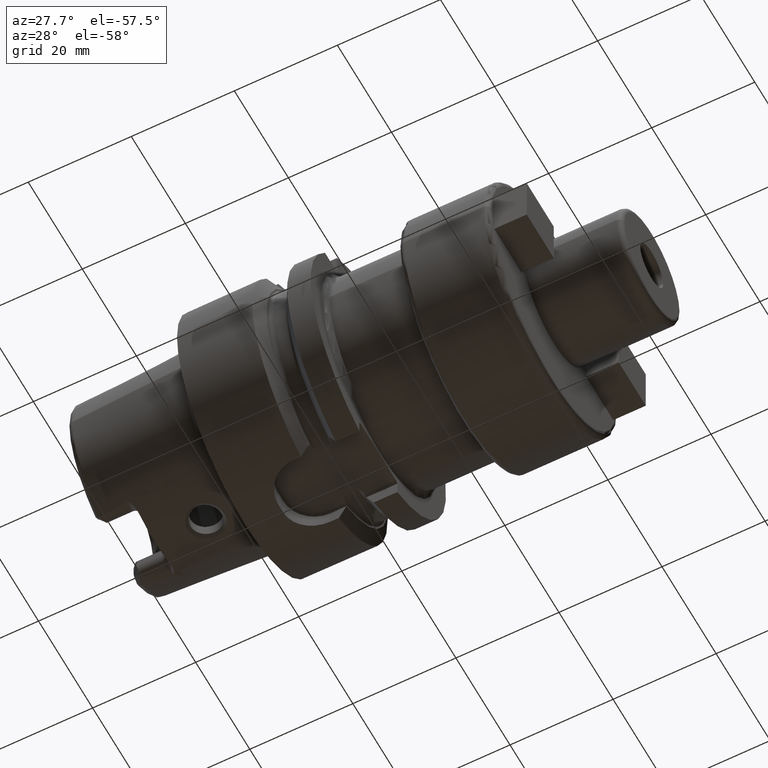
[diagram: clean part render]
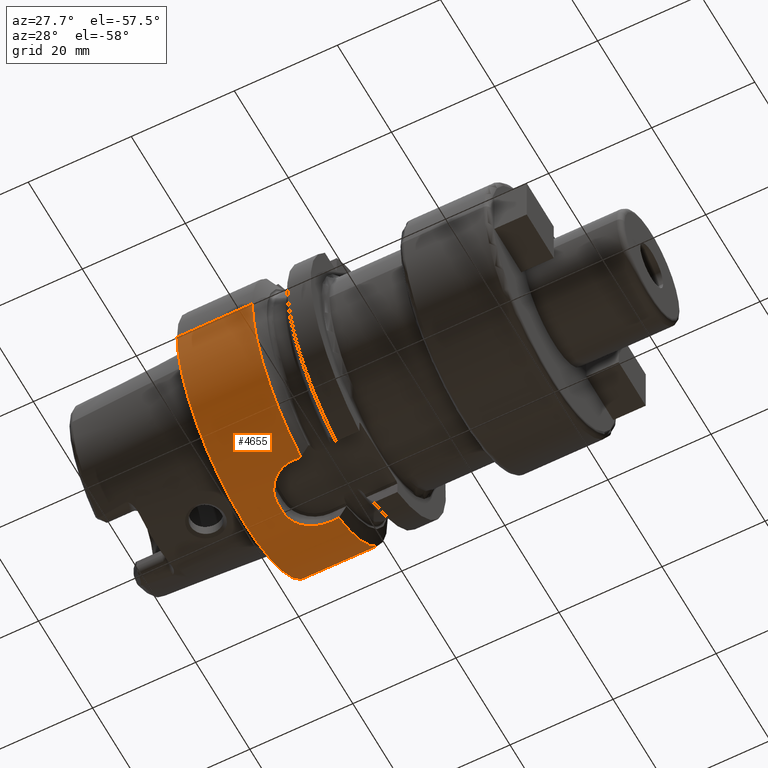
[diagram: same view with one face highlighted and labeled with its STEP entity id]
A machine part, auxiliary view. The second image highlights one B-rep face of the part: STEP entity #4655.
In plain terms, the highlighted cylindrical surface (partial cylindrical patch) has radius 25 mm, axis along (1, 0, 0).
Its self-contained STEP definition (entity closure, byte-faithful):
#872=CARTESIAN_POINT('',(0.E0,0.E0,0.E0));
#873=DIRECTION('',(-1.E0,0.E0,0.E0));
#874=DIRECTION('',(0.E0,1.E0,0.E0));
#875=AXIS2_PLACEMENT_3D('',#872,#873,#874);
#887=CARTESIAN_POINT('',(1.2E1,2.5E1,1.526170039412E-14));
#991=CARTESIAN_POINT('',(2.E0,2.5E1,2.455170019084E-14));
#1055=CARTESIAN_POINT('',(7.E0,2.449489742783E1,-5.E0));
#1056=CARTESIAN_POINT('',(7.264295270777E0,2.449489742783E1,-5.E0));
#1057=CARTESIAN_POINT('',(7.785013842827E0,2.450338614871E1,-4.958680477076E0));
#1058=CARTESIAN_POINT('',(8.551210806569E0,2.454016613099E1,-4.774925055815E0));
#1059=CARTESIAN_POINT('',(9.276331029941E0,2.459715345759E1,-4.474718642588E0));
#1060=CARTESIAN_POINT('',(9.947317646856E0,2.466886502270E1,-4.064472478945E0));
#1061=CARTESIAN_POINT('',(1.054794480038E1,2.474845595662E1,-3.552427628344E0));
#1062=CARTESIAN_POINT('',(1.106191181344E1,2.482799357997E1,-2.951208210709E0));
#1063=CARTESIAN_POINT('',(1.147560324911E1,2.489960101192E1,-2.275353587749E0));
#1064=CARTESIAN_POINT('',(1.177689611261E1,2.495597381028E1,-1.545432577730E0));
#1065=CARTESIAN_POINT('',(1.195928719975E1,2.499180982278E1,
-7.801844541827E-1));
#1066=CARTESIAN_POINT('',(1.2E1,2.5E1,-2.621404929664E-1));
#1067=CARTESIAN_POINT('',(1.2E1,2.5E1,1.526170039412E-14));
#1069=CARTESIAN_POINT('',(2.E0,2.5E1,2.455170019084E-14));
#1070=CARTESIAN_POINT('',(2.E0,2.5E1,-2.621074782775E-1));
#1071=CARTESIAN_POINT('',(2.040697717752E0,2.499181267397E1,
-7.801110060270E-1));
#1072=CARTESIAN_POINT('',(2.223109513093E0,2.495597315332E1,-1.545439830533E0));
#1073=CARTESIAN_POINT('',(2.524386263003E0,2.489960137339E1,-2.275388546126E0));
#1074=CARTESIAN_POINT('',(2.938446508236E0,2.482793515031E1,-2.951694325911E0));
#1075=CARTESIAN_POINT('',(3.451983157137E0,2.474846923073E1,-3.552307368008E0));
#1076=CARTESIAN_POINT('',(4.052432365054E0,2.466889603249E1,-4.064287773803E0));
#1077=CARTESIAN_POINT('',(4.723267798849E0,2.459719144875E1,-4.474509191644E0));
#1078=CARTESIAN_POINT('',(5.448358880975E0,2.454019377775E1,-4.774784890843E0));
#1079=CARTESIAN_POINT('',(6.214553057502E0,2.450339839484E1,-4.958620550304E0));
#1080=CARTESIAN_POINT('',(6.735530397713E0,2.449489742783E1,-5.E0));
#1081=CARTESIAN_POINT('',(7.E0,2.449489742783E1,-5.E0));
#1083=DIRECTION('',(-1.E0,0.E0,-1.125531109613E-14));
#1084=VECTOR('',#1083,2.E0);
#1085=CARTESIAN_POINT('',(2.E0,2.5E1,2.455170019084E-14));
#1086=LINE('',#1085,#1084);
#1087=DIRECTION('',(-1.E0,0.E0,0.E0));
#1088=VECTOR('',#1087,1.460806716851E1);
#1089=CARTESIAN_POINT('',(1.460806716851E1,-2.5E1,0.E0));
#1090=LINE('',#1089,#1088);
#1091=CARTESIAN_POINT('',(1.460806716851E1,0.E0,0.E0));
#1092=DIRECTION('',(1.E0,0.E0,0.E0));
#1093=DIRECTION('',(0.E0,-1.E0,0.E0));
#1094=AXIS2_PLACEMENT_3D('',#1091,#1092,#1093);
#1096=DIRECTION('',(1.E0,0.E0,0.E0));
#1097=VECTOR('',#1096,1.658067168511E0);
#1098=CARTESIAN_POINT('',(1.295E1,-7.0175E0,-2.399488890889E1));
#1099=LINE('',#1098,#1097);
#1100=CARTESIAN_POINT('',(6.95E0,-1.0175E0,-2.497928529302E1));
#1101=CARTESIAN_POINT('',(6.95E0,-1.292806933606E0,-2.496807100880E1));
#1102=CARTESIAN_POINT('',(6.987424329369E0,-1.838700313251E0,
-2.493679025746E1));
#1103=CARTESIAN_POINT('',(7.157043890416E0,-2.652109269602E0,
-2.486327963206E1));
#1104=CARTESIAN_POINT('',(7.436270916125E0,-3.430638234339E0,
-2.476737813376E1));
#1105=CARTESIAN_POINT('',(7.813331333618E0,-4.153237905923E0,
-2.465591977616E1));
#1106=CARTESIAN_POINT('',(8.280976113433E0,-4.815137162639E0,
-2.453474744393E1));
#1107=CARTESIAN_POINT('',(8.849785979533E0,-5.425892815737E0,
-2.440656086776E1));
#1108=CARTESIAN_POINT('',(9.540587950840E0,-5.982584161015E0,
-2.427556866015E1));
#1109=CARTESIAN_POINT('',(1.034335259261E1,-6.448954515038E0,
-2.415512297324E1));
#1110=CARTESIAN_POINT('',(1.122755504098E1,-6.790958826311E0,
-2.406049979650E1));
#1111=CARTESIAN_POINT('',(1.213268720054E1,-6.983176624966E0,
-2.400498138630E1));
#1112=CARTESIAN_POINT('',(1.268269204416E1,-7.0175E0,-2.399488890889E1));
#1113=CARTESIAN_POINT('',(1.295E1,-7.0175E0,-2.399488890889E1));
#1115=CARTESIAN_POINT('',(6.95E0,0.E0,0.E0));
#1116=DIRECTION('',(1.E0,0.E0,0.E0));
#1117=DIRECTION('',(0.E0,-4.07E-2,-9.991714117207E-1));
#1118=AXIS2_PLACEMENT_3D('',#1115,#1116,#1117);
#1120=CARTESIAN_POINT('',(1.295E1,7.0175E0,-2.399488890889E1));
#1121=CARTESIAN_POINT('',(1.268129916488E1,7.0175E0,-2.399488890889E1));
#1122=CARTESIAN_POINT('',(1.212920869006E1,6.982812767387E0,-2.400508875106E1));
#1123=CARTESIAN_POINT('',(1.122294517834E1,6.789588829881E0,-2.406089020336E1));
#1124=CARTESIAN_POINT('',(1.033996281846E1,6.447220537784E0,-2.415558412986E1));
#1125=CARTESIAN_POINT('',(9.538846003519E0,5.981340314417E0,-2.427587424319E1));
#1126=CARTESIAN_POINT('',(8.848344847424E0,5.424516675012E0,-2.440686461257E1));
#1127=CARTESIAN_POINT('',(8.280531234846E0,4.814509447633E0,-2.453486380236E1));
#1128=CARTESIAN_POINT('',(7.813154967703E0,4.152953517191E0,-2.465596779397E1));
#1129=CARTESIAN_POINT('',(7.436042142774E0,3.430143530151E0,-2.476744947187E1));
#1130=CARTESIAN_POINT('',(7.156898267245E0,2.651542990986E0,-2.486333713463E1));
#1131=CARTESIAN_POINT('',(6.987427052601E0,1.838593092556E0,-2.493679407721E1));
#1132=CARTESIAN_POINT('',(6.95E0,1.292777174533E0,-2.496807222099E1));
#1133=CARTESIAN_POINT('',(6.95E0,1.0175E0,-2.497928529302E1));
#1135=DIRECTION('',(1.E0,1.017774810019E-14,0.E0));
#1136=VECTOR('',#1135,1.658067168511E0);
#1137=CARTESIAN_POINT('',(1.295E1,7.0175E0,-2.399488890889E1));
#1138=LINE('',#1137,#1136);
#1139=CARTESIAN_POINT('',(1.460806716851E1,0.E0,0.E0));
#1140=DIRECTION('',(1.E0,0.E0,0.E0));
#1141=DIRECTION('',(0.E0,2.807E-1,-9.597955563556E-1));
#1142=AXIS2_PLACEMENT_3D('',#1139,#1140,#1141);
#1144=DIRECTION('',(-1.E0,0.E0,0.E0));
#1145=VECTOR('',#1144,2.608067168511E0);
#1146=CARTESIAN_POINT('',(1.460806716851E1,2.5E1,0.E0));
#1147=LINE('',#1146,#1145);
#1776=CARTESIAN_POINT('',(1.460806716851E1,7.0175E0,-2.399488890889E1));
#1829=CARTESIAN_POINT('',(1.460806716851E1,-7.0175E0,-2.399488890889E1));
#3197=VERTEX_POINT('',#1776);
#3207=VERTEX_POINT('',#1829);
#3291=CARTESIAN_POINT('',(1.295E1,-7.0175E0,-2.399488890889E1));
#3292=VERTEX_POINT('',#3291);
#3293=CARTESIAN_POINT('',(6.95E0,-1.0175E0,-2.497928529302E1));
#3294=VERTEX_POINT('',#3293);
#3295=CARTESIAN_POINT('',(6.95E0,1.0175E0,-2.497928529302E1));
#3296=VERTEX_POINT('',#3295);
#3297=CARTESIAN_POINT('',(1.295E1,7.0175E0,-2.399488890889E1));
#3298=VERTEX_POINT('',#3297);
#3325=CARTESIAN_POINT('',(0.E0,2.5E1,0.E0));
#3326=CARTESIAN_POINT('',(0.E0,-2.5E1,0.E0));
#3327=VERTEX_POINT('',#3325);
#3328=VERTEX_POINT('',#3326);
#3329=CARTESIAN_POINT('',(1.460806716851E1,2.5E1,0.E0));
#3330=VERTEX_POINT('',#3329);
#3331=CARTESIAN_POINT('',(1.460806716851E1,-2.5E1,0.E0));
#3332=VERTEX_POINT('',#3331);
#3403=CARTESIAN_POINT('',(7.E0,2.449489742783E1,-5.E0));
#3404=VERTEX_POINT('',#3403);
#3429=VERTEX_POINT('',#887);
#3430=VERTEX_POINT('',#991);
#4628=CARTESIAN_POINT('',(-2.74425E1,0.E0,0.E0));
#4629=DIRECTION('',(1.E0,0.E0,0.E0));
#4630=DIRECTION('',(0.E0,-1.E0,0.E0));
#4631=AXIS2_PLACEMENT_3D('',#4628,#4629,#4630);
#4632=CYLINDRICAL_SURFACE('',#4631,2.5E1);
#4633=ORIENTED_EDGE('',*,*,#4559,.F.);
#4634=ORIENTED_EDGE('',*,*,#4572,.F.);
#4635=ORIENTED_EDGE('',*,*,#4541,.T.);
#4636=ORIENTED_EDGE('',*,*,#4500,.T.);
#4637=ORIENTED_EDGE('',*,*,#4538,.F.);
#4639=ORIENTED_EDGE('',*,*,#4638,.T.);
#4641=ORIENTED_EDGE('',*,*,#4640,.F.);
#4643=ORIENTED_EDGE('',*,*,#4642,.F.);
#4645=ORIENTED_EDGE('',*,*,#4644,.T.);
#4647=ORIENTED_EDGE('',*,*,#4646,.F.);
#4649=ORIENTED_EDGE('',*,*,#4648,.T.);
#4651=ORIENTED_EDGE('',*,*,#4650,.T.);
#4652=ORIENTED_EDGE('',*,*,#4516,.T.);
#4653=EDGE_LOOP('',(#4633,#4634,#4635,#4636,#4637,#4639,#4641,#4643,#4645,#4647,
#4649,#4651,#4652));
#4654=FACE_OUTER_BOUND('',#4653,.F.);
#4655=ADVANCED_FACE('',(#4654),#4632,.T.);
#876=CIRCLE('',#875,2.5E1);
#1068=B_SPLINE_CURVE_WITH_KNOTS('',3,(#1055,#1056,#1057,#1058,#1059,#1060,#1061,
#1062,#1063,#1064,#1065,#1066,#1067),.UNSPECIFIED.,.F.,.F.,(4,1,1,1,1,1,1,1,1,1,
4),(0.E0,1.E-1,2.E-1,3.E-1,4.E-1,5.E-1,6.E-1,7.E-1,8.E-1,9.E-1,1.E0),
.UNSPECIFIED.);
#1082=B_SPLINE_CURVE_WITH_KNOTS('',3,(#1069,#1070,#1071,#1072,#1073,#1074,#1075,
#1076,#1077,#1078,#1079,#1080,#1081),.UNSPECIFIED.,.F.,.F.,(4,1,1,1,1,1,1,1,1,1,
4),(0.E0,1.E-1,2.E-1,3.E-1,4.E-1,5.E-1,6.E-1,7.E-1,8.E-1,9.E-1,1.E0),
.UNSPECIFIED.);
#1095=CIRCLE('',#1094,2.5E1);
#1114=B_SPLINE_CURVE_WITH_KNOTS('',3,(#1100,#1101,#1102,#1103,#1104,#1105,#1106,
#1107,#1108,#1109,#1110,#1111,#1112,#1113),.UNSPECIFIED.,.F.,.F.,(4,1,1,1,1,1,1,
1,1,1,1,4),(0.E0,9.090909090909E-2,1.818181818182E-1,2.727272727273E-1,
3.636363636364E-1,4.545454545455E-1,5.454545454545E-1,6.363636363636E-1,
7.272727272727E-1,8.181818181818E-1,9.090909090909E-1,1.E0),.UNSPECIFIED.);
#1119=CIRCLE('',#1118,2.5E1);
#1134=B_SPLINE_CURVE_WITH_KNOTS('',3,(#1120,#1121,#1122,#1123,#1124,#1125,#1126,
#1127,#1128,#1129,#1130,#1131,#1132,#1133),.UNSPECIFIED.,.F.,.F.,(4,1,1,1,1,1,1,
1,1,1,1,4),(0.E0,9.090909090909E-2,1.818181818182E-1,2.727272727273E-1,
3.636363636364E-1,4.545454545455E-1,5.454545454545E-1,6.363636363636E-1,
7.272727272727E-1,8.181818181818E-1,9.090909090909E-1,1.E0),.UNSPECIFIED.);
#1143=CIRCLE('',#1142,2.5E1);
#4500=EDGE_CURVE('',#3327,#3328,#876,.T.);
#4516=EDGE_CURVE('',#3330,#3429,#1147,.T.);
#4538=EDGE_CURVE('',#3332,#3328,#1090,.T.);
#4541=EDGE_CURVE('',#3430,#3327,#1086,.T.);
#4559=EDGE_CURVE('',#3404,#3429,#1068,.T.);
#4572=EDGE_CURVE('',#3430,#3404,#1082,.T.);
#4638=EDGE_CURVE('',#3332,#3207,#1095,.T.);
#4640=EDGE_CURVE('',#3292,#3207,#1099,.T.);
#4642=EDGE_CURVE('',#3294,#3292,#1114,.T.);
#4644=EDGE_CURVE('',#3294,#3296,#1119,.T.);
#4646=EDGE_CURVE('',#3298,#3296,#1134,.T.);
#4648=EDGE_CURVE('',#3298,#3197,#1138,.T.);
#4650=EDGE_CURVE('',#3197,#3330,#1143,.T.);